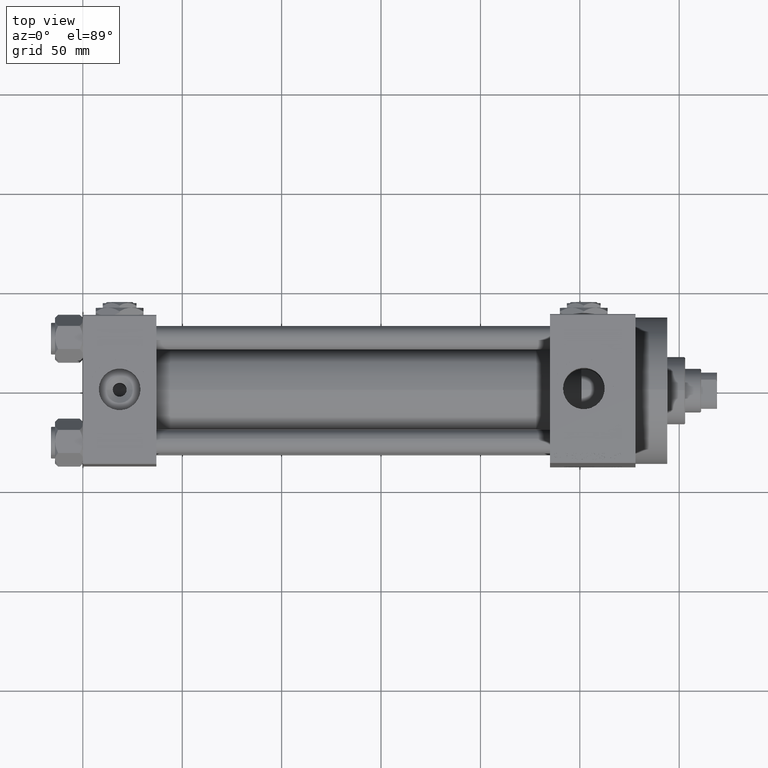
[diagram: clean part render]
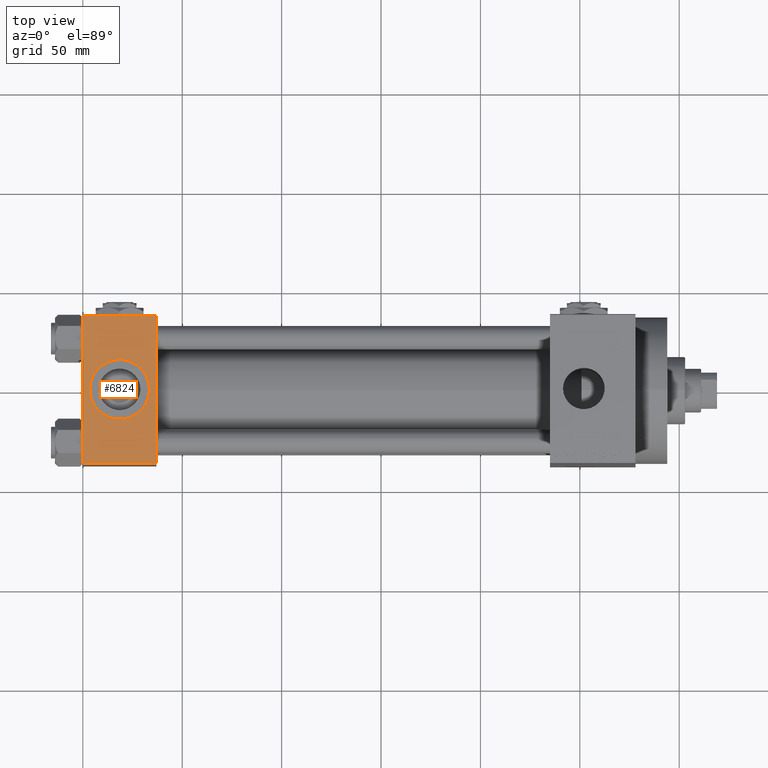
[diagram: same view with one face highlighted and labeled with its STEP entity id]
A machine part, top view. The second image highlights one B-rep face of the part: STEP entity #6824.
In plain terms, the highlighted planar face has unit normal (0, 0, -1).
Its self-contained STEP definition (entity closure, byte-faithful):
#1250 = CARTESIAN_POINT ( 'NONE',  ( 0.000000000000000000, 36.99999999999999289, 37.50000000000000000 ) ) ;
#2294 = ORIENTED_EDGE ( 'NONE', *, *, #28963, .T. ) ;
#2811 = VERTEX_POINT ( 'NONE', #34629 ) ;
#2966 = VERTEX_POINT ( 'NONE', #23659 ) ;
#6141 = LINE ( 'NONE', #9635, #36932 ) ;
#6824 = ADVANCED_FACE ( 'NONE', ( #29881, #22380 ), #35321, .F. ) ;
#7787 = DIRECTION ( 'NONE',  ( 0.000000000000000000, 0.000000000000000000, 1.000000000000000000 ) ) ;
#9635 = CARTESIAN_POINT ( 'NONE',  ( 0.000000000000000000, 37.49999999999999289, 37.50000000000000000 ) ) ;
#10588 = EDGE_CURVE ( 'NONE', #12966, #2966, #34665, .T. ) ;
#11723 = DIRECTION ( 'NONE',  ( 1.000000000000000000, 0.000000000000000000, 0.000000000000000000 ) ) ;
#12458 = CARTESIAN_POINT ( 'NONE',  ( 18.50000000000000000, -5.204170427930421283E-15, 37.50000000000000000 ) ) ;
#12626 = CARTESIAN_POINT ( 'NONE',  ( 37.00000000000000000, -37.00000000000000711, 37.49999999999999289 ) ) ;
#12966 = VERTEX_POINT ( 'NONE', #19253 ) ;
#13183 = AXIS2_PLACEMENT_3D ( 'NONE', #14089, #7787, #36527 ) ;
#13471 = VECTOR ( 'NONE', #27577, 1000.000000000000000 ) ;
#14089 = CARTESIAN_POINT ( 'NONE',  ( 18.50000000000000000, -5.204170427930421283E-15, 37.50000000000000000 ) ) ;
#14191 = CIRCLE ( 'NONE', #36474, 15.00000000000000355 ) ;
#16867 = CARTESIAN_POINT ( 'NONE',  ( 37.00000000000000000, 37.49999999999999289, 37.50000000000000000 ) ) ;
#17816 = DIRECTION ( 'NONE',  ( 0.000000000000000000, -1.000000000000000000, -9.251858538542971581E-17 ) ) ;
#19079 = EDGE_CURVE ( 'NONE', #27159, #26857, #27324, .T. ) ;
#19253 = CARTESIAN_POINT ( 'NONE',  ( 3.499999999999997780, -3.367200229209391300E-15, 37.50000000000000000 ) ) ;
#20269 = VECTOR ( 'NONE', #22507, 1000.000000000000000 ) ;
#22380 = FACE_OUTER_BOUND ( 'NONE', #25740, .T. ) ;
#22406 = CARTESIAN_POINT ( 'NONE',  ( 0.000000000000000000, -37.00000000000000711, 37.49999999999999289 ) ) ;
#22507 = DIRECTION ( 'NONE',  ( 0.000000000000000000, -1.000000000000000000, -9.251858538542971581E-17 ) ) ;
#22674 = EDGE_CURVE ( 'NONE', #25113, #2811, #35388, .T. ) ;
#22745 = ORIENTED_EDGE ( 'NONE', *, *, #10588, .F. ) ;
#23659 = CARTESIAN_POINT ( 'NONE',  ( 33.50000000000000000, -5.204170427930421283E-15, 37.50000000000000000 ) ) ;
#23919 = DIRECTION ( 'NONE',  ( -1.000000000000000000, 0.000000000000000000, 0.000000000000000000 ) ) ;
#24628 = CARTESIAN_POINT ( 'NONE',  ( 37.00000000000000000, 36.99999999999999289, 37.50000000000000000 ) ) ;
#25113 = VERTEX_POINT ( 'NONE', #24628 ) ;
#25740 = EDGE_LOOP ( 'NONE', ( #2294, #31217, #35403, #29699 ) ) ;
#26013 = LINE ( 'NONE', #41230, #20269 ) ;
#26857 = VERTEX_POINT ( 'NONE', #43512 ) ;
#27159 = VERTEX_POINT ( 'NONE', #22406 ) ;
#27324 = LINE ( 'NONE', #12626, #13471 ) ;
#27577 = DIRECTION ( 'NONE',  ( 1.000000000000000000, 0.000000000000000000, 0.000000000000000000 ) ) ;
#28963 = EDGE_CURVE ( 'NONE', #2811, #27159, #6141, .T. ) ;
#29699 = ORIENTED_EDGE ( 'NONE', *, *, #22674, .T. ) ;
#29881 = FACE_BOUND ( 'NONE', #48117, .T. ) ;
#31099 = DIRECTION ( 'NONE',  ( 0.000000000000000000, 1.000000000000000000, 9.251858538542971581E-17 ) ) ;
#31217 = ORIENTED_EDGE ( 'NONE', *, *, #19079, .T. ) ;
#34390 = EDGE_CURVE ( 'NONE', #25113, #26857, #26013, .T. ) ;
#34629 = CARTESIAN_POINT ( 'NONE',  ( 0.000000000000000000, 36.99999999999999289, 37.50000000000000000 ) ) ;
#34665 = CIRCLE ( 'NONE', #13183, 15.00000000000000355 ) ;
#35130 = DIRECTION ( 'NONE',  ( 0.000000000000000000, 0.000000000000000000, 1.000000000000000000 ) ) ;
#35321 = PLANE ( 'NONE',  #41794 ) ;
#35388 = LINE ( 'NONE', #1250, #35910 ) ;
#35403 = ORIENTED_EDGE ( 'NONE', *, *, #34390, .F. ) ;
#35910 = VECTOR ( 'NONE', #23919, 1000.000000000000000 ) ;
#36474 = AXIS2_PLACEMENT_3D ( 'NONE', #12458, #35130, #11723 ) ;
#36527 = DIRECTION ( 'NONE',  ( 1.000000000000000000, 0.000000000000000000, 0.000000000000000000 ) ) ;
#36910 = ORIENTED_EDGE ( 'NONE', *, *, #46472, .F. ) ;
#36932 = VECTOR ( 'NONE', #17816, 1000.000000000000000 ) ;
#41230 = CARTESIAN_POINT ( 'NONE',  ( 37.00000000000000000, 37.49999999999999289, 37.50000000000000000 ) ) ;
#41794 = AXIS2_PLACEMENT_3D ( 'NONE', #16867, #46563, #31099 ) ;
#43512 = CARTESIAN_POINT ( 'NONE',  ( 37.00000000000000000, -37.00000000000000711, 37.49999999999999289 ) ) ;
#46472 = EDGE_CURVE ( 'NONE', #2966, #12966, #14191, .T. ) ;
#46563 = DIRECTION ( 'NONE',  ( 0.000000000000000000, 9.251858538542971581E-17, -1.000000000000000000 ) ) ;
#48117 = EDGE_LOOP ( 'NONE', ( #36910, #22745 ) ) ;